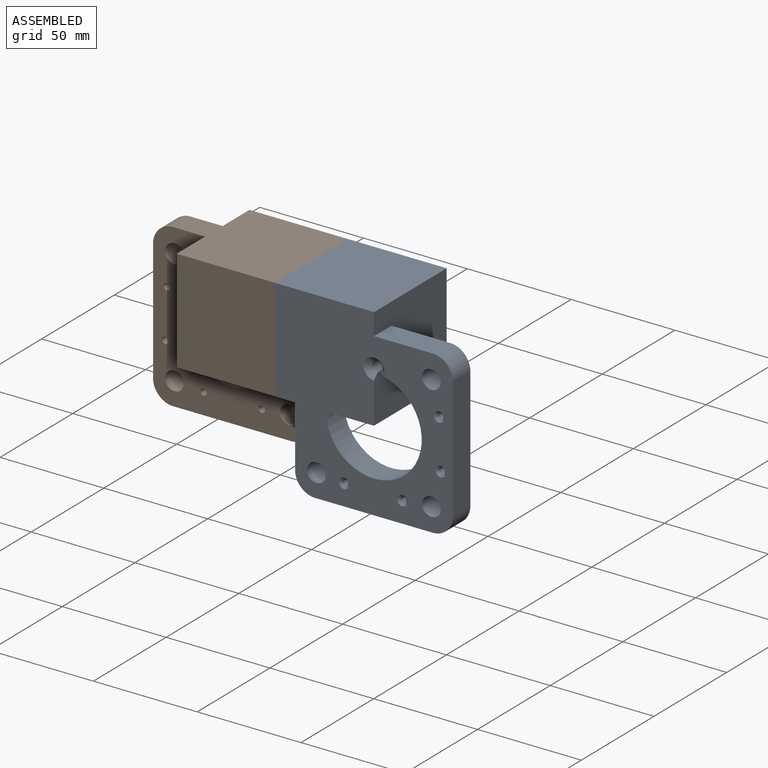
[diagram: assembled view]
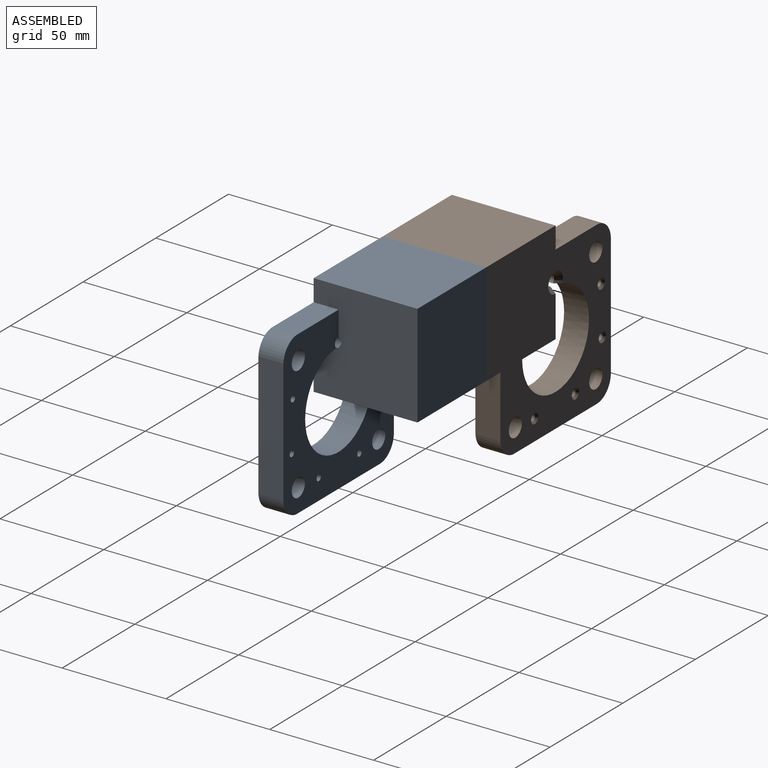
[diagram: assembled view, second angle]
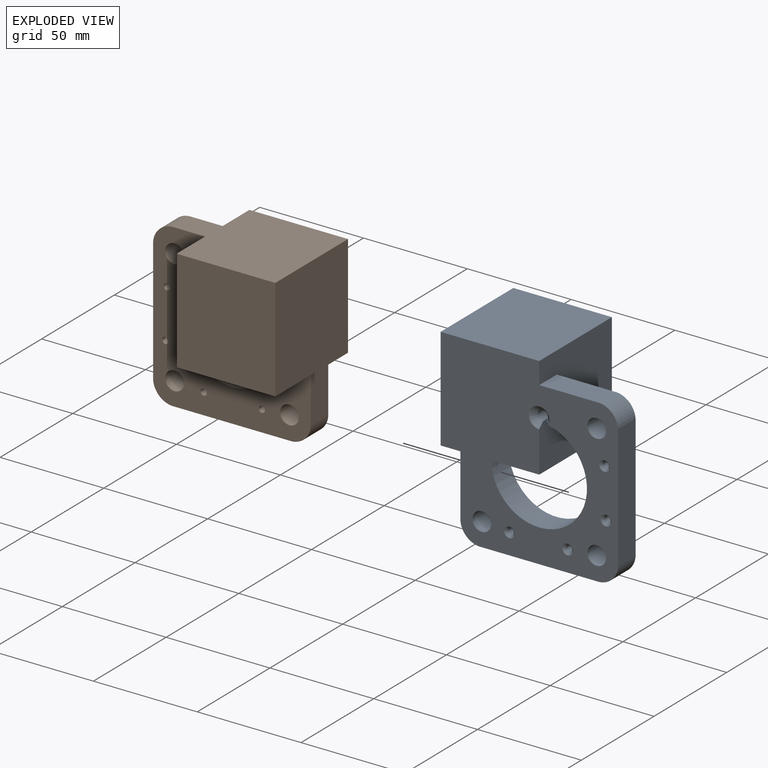
[diagram: exploded view]
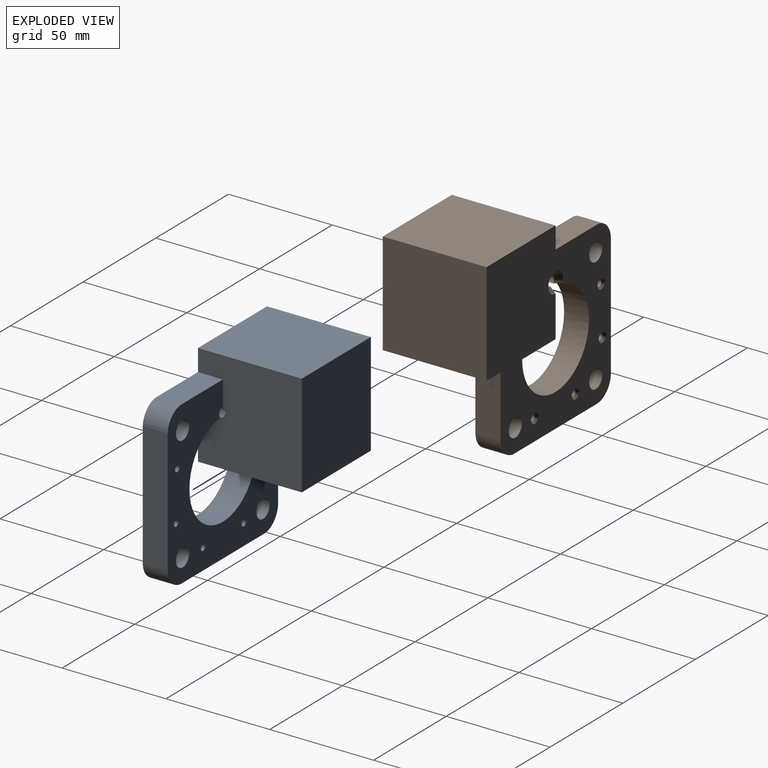
[diagram: exploded view, second angle]
ASSEMBLY  parts=2 mates=2
PART A: 29 faces, bbox 85.5x50x88.5 mm
  f0: cylinder r=23mm len=46mm, axis (0,1,0), area 1276.3mm2, adj f12,f13,f17,f19,f20
  f1: plane 50x49.48mm, normal (-1,0,0), area 2265.9mm2, adj f3,f12,f13,f14,f15,f17,f18,f19
  f2: plane 30x12mm, normal (1,0,0), area 360mm2, adj f11,f12,f13,f17
  f3: plane 29x12mm, normal (0,0,1), area 348mm2, adj f1,f4,f12,f13
  f4: cylinder r=9.75mm len=12mm, axis (0,1,0), area 166.4mm2, adj f3,f5,f12,f13
  f5: plane 60x12mm, normal (-1,0,0), area 720mm2, adj f4,f6,f12,f13
  f6: cylinder r=9.75mm len=12mm, axis (0,1,0), area 166.4mm2, adj f5,f7,f12,f13
  f7: plane 58x12mm, normal (0,0,-1), area 696mm2, adj f6,f11,f12,f13
  f8: cylinder r=4.5mm len=12mm, axis (0,1,0), area 339.3mm2, adj f12,f13
  f9: cylinder r=4.5mm len=12mm, axis (0,1,0), area 339.3mm2, adj f12,f13
  f10: cylinder r=4.5mm len=12mm, axis (0,1,0), area 339.3mm2, adj f12,f13
  f11: cylinder r=9.75mm len=12mm, axis (0,1,0), area 166.4mm2, adj f2,f7,f12,f13
  f12: plane 78x76mm, normal (0,-1,0), area 2911.8mm2, adj f0,f1,f2,f3,f4,f5,f6,f7
  f13: plane 88.48x85.51mm, normal (0,1,0), area 5152.8mm2, adj f0,f1,f2,f3,f4,f5,f6,f7
  f14: plane 49.48x47.51mm, normal (0,-1,0), area 2350.5mm2, adj f1,f15,f16,f17
  f15: plane 50x47.51mm, normal (0,0,1), area 2375.3mm2, adj f1,f13,f14,f16
  f16: plane 50x49.48mm, normal (1,0,0), area 2473.9mm2, adj f13,f14,f15,f17
  f17: plane 50x47.51mm, normal (0,0,-1), area 2195.3mm2, adj f0,f1,f2,f12,f13,f14,f16
  f18: cone r=0mm half-angle=59deg, axis (0,1,0), area 11.5mm2, adj f1,f19
  f19: cylinder r=2.5mm len=9.5mm, axis (0,1,0), area 131.1mm2, adj f0,f1,f12,f18,f20
  f20: cone r=2.5mm half-angle=45deg, axis (0,1,0), area 69.9mm2, adj f0,f1,f13,f19
  f21: cylinder r=1.5mm len=11mm, axis (0,1,0), area 103.7mm2, adj f12,f22
  f22: cone r=1.5mm half-angle=45deg, axis (0,1,0), area 17.8mm2, adj f13,f21
  f23: cylinder r=1.5mm len=11mm, axis (0,1,0), area 103.7mm2, adj f12,f24
  f24: cone r=1.5mm half-angle=45deg, axis (0,1,0), area 17.8mm2, adj f13,f23
  f25: cylinder r=1.5mm len=11mm, axis (0,1,0), area 103.7mm2, adj f12,f26
  f26: cone r=1.5mm half-angle=45deg, axis (0,1,0), area 17.8mm2, adj f13,f25
  f27: cylinder r=1.5mm len=11mm, axis (0,1,0), area 103.7mm2, adj f12,f28
  f28: cone r=1.5mm half-angle=45deg, axis (0,1,0), area 17.8mm2, adj f13,f27
PART B: same geometry as A
PLACE A rot(axis=(0,0,1),180deg) t=(-44.42,-64.97,123.57)mm
PLACE B t=(-139.43,-14.97,123.57)mm
MATE slider A.f16 <-> B.f16  axis (-1,0,0) through (-91.92,-39.97,148.31)mm
MATE planar A.f16 <-> B.f16  axis (-1,0,0) through (-91.92,-39.97,173.05)mm
